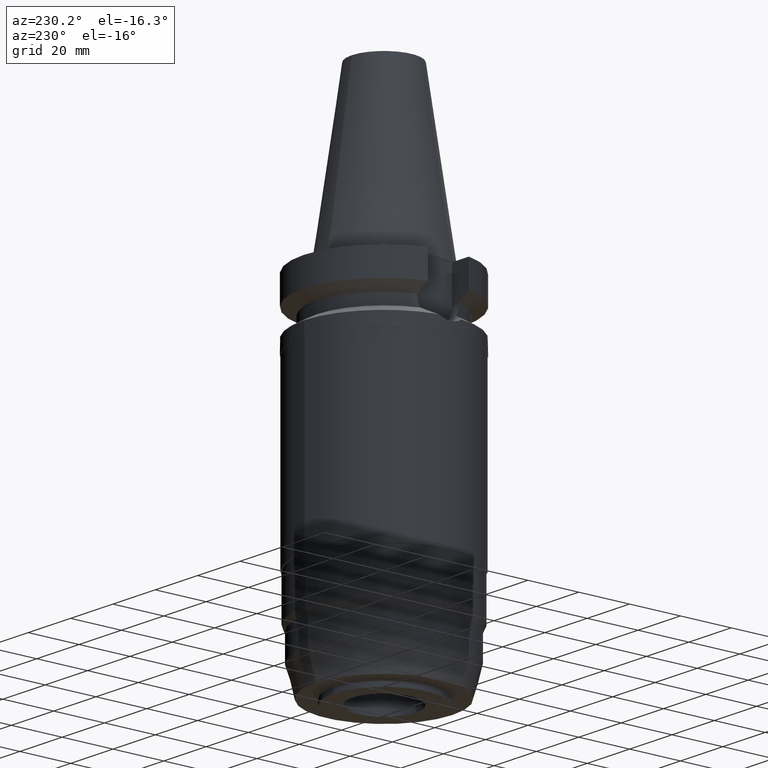
[diagram: clean part render]
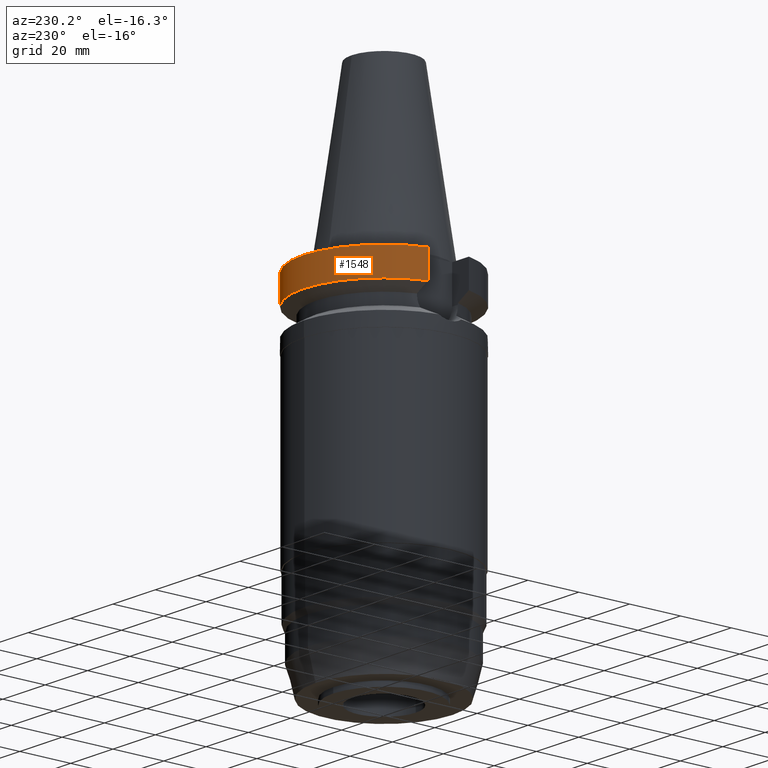
[diagram: same view with one face highlighted and labeled with its STEP entity id]
A machine part, auxiliary view. The second image highlights one B-rep face of the part: STEP entity #1548.
In plain terms, the highlighted cylindrical surface (partial cylindrical patch) has radius 31.5 mm, axis along (0, 0, -1).
Its self-contained STEP definition (entity closure, byte-faithful):
#108=CARTESIAN_POINT('',(0.E0,2.149500061863E-14,-1.E0));
#109=DIRECTION('',(0.E0,0.E0,-1.E0));
#110=DIRECTION('',(-9.667943721520E-1,2.555555555556E-1,0.E0));
#111=AXIS2_PLACEMENT_3D('',#108,#109,#110);
#116=CARTESIAN_POINT('',(0.E0,2.149500061863E-14,-1.E0));
#117=DIRECTION('',(0.E0,0.E0,-1.E0));
#118=DIRECTION('',(0.E0,1.E0,0.E0));
#119=AXIS2_PLACEMENT_3D('',#116,#117,#118);
#344=CARTESIAN_POINT('',(3.045402291367E1,8.049999277887E0,-1.156551215659E1));
#393=CARTESIAN_POINT('',(-3.045402162752E1,8.050004143520E0,-1.156546832960E1));
#414=CARTESIAN_POINT('',(0.E0,1.065333950388E-14,-1.156550565267E1));
#415=DIRECTION('',(0.E0,0.E0,1.E0));
#416=DIRECTION('',(9.667943721520E-1,2.555555555555E-1,0.E0));
#417=AXIS2_PLACEMENT_3D('',#414,#415,#416);
#422=CARTESIAN_POINT('',(0.E0,1.065333950388E-14,-1.156550565267E1));
#423=DIRECTION('',(0.E0,0.E0,1.E0));
#424=DIRECTION('',(0.E0,1.E0,0.E0));
#425=AXIS2_PLACEMENT_3D('',#422,#423,#424);
#430=DIRECTION('',(1.036650936475E-7,3.921757539539E-7,-9.999999999999E-1));
#431=VECTOR('',#430,1.056546832960E1);
#432=CARTESIAN_POINT('',(-3.045402272279E1,8.05E0,-1.E0));
#433=LINE('',#432,#431);
#437=DIRECTION('',(-1.806609502961E-8,6.834623439034E-8,1.E0));
#438=VECTOR('',#437,1.056551215659E1);
#439=CARTESIAN_POINT('',(3.045402291367E1,8.049999277887E0,-1.156551215659E1));
#440=LINE('',#439,#438);
#1203=CARTESIAN_POINT('',(-3.045402272279E1,8.05E0,-1.E0));
#1204=VERTEX_POINT('',#1203);
#1205=CARTESIAN_POINT('',(-3.046064939756E-14,3.15E1,-1.E0));
#1206=CARTESIAN_POINT('',(3.045402272279E1,8.05E0,-1.E0));
#1207=VERTEX_POINT('',#1205);
#1208=VERTEX_POINT('',#1206);
#1225=VERTEX_POINT('',#393);
#1230=VERTEX_POINT('',#344);
#1231=CARTESIAN_POINT('',(0.E0,3.15E1,-1.156550565267E1));
#1232=VERTEX_POINT('',#1231);
#1535=CARTESIAN_POINT('',(0.E0,2.149500061863E-14,7.552E1));
#1536=DIRECTION('',(0.E0,0.E0,-1.E0));
#1537=DIRECTION('',(0.E0,-1.E0,0.E0));
#1538=AXIS2_PLACEMENT_3D('',#1535,#1536,#1537);
#1539=CYLINDRICAL_SURFACE('',#1538,3.15E1);
#1540=ORIENTED_EDGE('',*,*,#1510,.T.);
#1541=ORIENTED_EDGE('',*,*,#1530,.F.);
#1542=ORIENTED_EDGE('',*,*,#1528,.F.);
#1543=ORIENTED_EDGE('',*,*,#1472,.T.);
#1544=ORIENTED_EDGE('',*,*,#1318,.F.);
#1545=ORIENTED_EDGE('',*,*,#1316,.F.);
#1546=EDGE_LOOP('',(#1540,#1541,#1542,#1543,#1544,#1545));
#1547=FACE_OUTER_BOUND('',#1546,.F.);
#112=CIRCLE('',#111,3.15E1);
#120=CIRCLE('',#119,3.15E1);
#418=CIRCLE('',#417,3.15E1);
#426=CIRCLE('',#425,3.15E1);
#1316=EDGE_CURVE('',#1204,#1207,#112,.T.);
#1318=EDGE_CURVE('',#1207,#1208,#120,.T.);
#1472=EDGE_CURVE('',#1230,#1208,#440,.T.);
#1510=EDGE_CURVE('',#1204,#1225,#433,.T.);
#1528=EDGE_CURVE('',#1230,#1232,#418,.T.);
#1530=EDGE_CURVE('',#1232,#1225,#426,.T.);
#1548=ADVANCED_FACE('',(#1547),#1539,.T.);